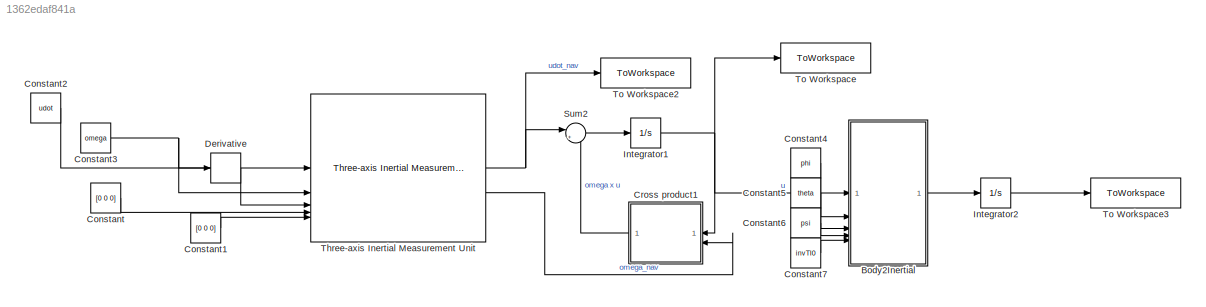
MODEL slx_1362edaf841a
KIND model
CONFIG AbsTol = auto
CONFIG EnableMultiTasking = off
CONFIG FixedStep = auto
CONFIG MaxStep = auto
CONFIG MinStep = auto
CONFIG RelTol = 1e-3
CONFIG SampleTimeConstraint = Unconstrained
CONFIG SolverName = VariableStepAuto
CONFIG StartTime = 0.0
CONFIG StopTime = 10.0
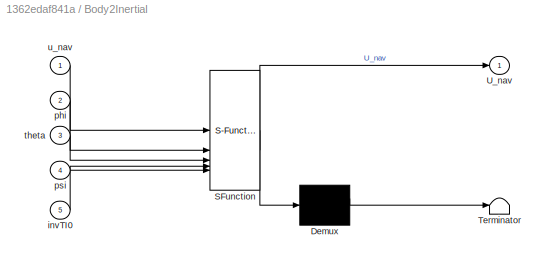
BLOCK [SubSystem] Body2Inertial
  Commented = on
  ErrorFcn = Stateflow.Translate.translate
  LibrarySourceBlock = simulink/User-Defined\nFunctions/MATLAB Function
  PermitHierarchicalResolution = ExplicitOnly
  SFBlockType = MATLAB Function
  TreatAsAtomicUnit = on
BLOCK [Demux] Body2Inertial/ Demux 
  Outputs = 1
BLOCK [S-Function] Body2Inertial/ SFunction 
  EnableBusSupport = on
  FunctionName = sf_sfun
  PortCounts = [5 2]
  SFcnIsStateOwnerBlock = off
  SFunctionDeploymentMode = off
  Tag = Stateflow S-Function 3
BLOCK [Terminator] Body2Inertial/ Terminator 
BLOCK [Outport] Body2Inertial/U_nav
BLOCK [Inport] Body2Inertial/invTI0
  Port = 5
BLOCK [Inport] Body2Inertial/phi
  Port = 2
BLOCK [Inport] Body2Inertial/psi
  Port = 4
BLOCK [Inport] Body2Inertial/theta
  Port = 3
BLOCK [Inport] Body2Inertial/u_nav
BLOCK [Constant] Constant
  Value = [0 0 0]
BLOCK [Constant] Constant1
  Value = [0 0 0]
BLOCK [Constant] Constant2
  Value = udot
BLOCK [Constant] Constant3
  Value = omega
BLOCK [Constant] Constant4
  Commented = on
  Value = phi
BLOCK [Constant] Constant5
  Commented = on
  Value = theta
BLOCK [Constant] Constant6
  Commented = on
  Value = psi
BLOCK [Constant] Constant7
  Commented = on
  Value = invTI0
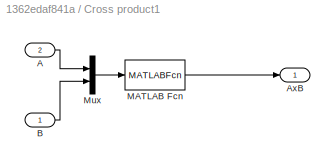
BLOCK [SubSystem] Cross product1
BLOCK [Inport] Cross product1/A
  Port = 2
BLOCK [Outport] Cross product1/AxB
  VectorParamsAs1DForOutWhenUnconnected = off
BLOCK [Inport] Cross product1/B
BLOCK [MATLABFcn] Cross product1/MATLAB Fcn
  MATLABFcn = cross(u(1:3),u(4:6))
BLOCK [Mux] Cross product1/Mux
  DisplayOption = bar
  Inputs = 2
BLOCK [Derivative] Derivative
BLOCK [Integrator] Integrator1
  InitialCondition = u0
BLOCK [Integrator] Integrator2
  Commented = on
  InitialCondition = R_pos0
BLOCK [Sum] Sum2
  Inputs = |+-
BLOCK [Reference] Three-axis Inertial Measurement Unit  REF=aerolibnav/Three-axis Inertial
Measurement Unit
  SourceBlock = aerolibnav/Three-axis Inertial\nMeasurement Unit
  SourceType = Three-axis Inertial Measurement Unit
BLOCK [ToWorkspace] To Workspace
  FixptAsFi = on
  MaxDataPoints = inf
  SampleTime = -1
  VariableName = u_nav
BLOCK [ToWorkspace] To Workspace2
  FixptAsFi = on
  MaxDataPoints = inf
  SampleTime = -1
  VariableName = udot_nav
BLOCK [ToWorkspace] To Workspace3
  Commented = on
  FixptAsFi = on
  MaxDataPoints = inf
  SampleTime = -1
  VariableName = R_nav
LINE Body2Inertial:1 -> Integrator2:1
LINE Constant1:1 -> Three-axis Inertial Measurement Unit:5
LINE Constant2:1 -> Three-axis Inertial Measurement Unit:1
NET Constant3:1 -> Derivative:1, Three-axis Inertial Measurement Unit:2
LINE Constant4:1 -> Body2Inertial:2
LINE Constant5:1 -> Body2Inertial:3
LINE Constant6:1 -> Body2Inertial:4
LINE Constant7:1 -> Body2Inertial:5
LINE Constant:1 -> Three-axis Inertial Measurement Unit:4
LINE Cross product1/A:1 -> Cross product1/Mux:1
LINE Cross product1/B:1 -> Cross product1/Mux:2
LINE Cross product1/MATLAB Fcn:1 -> Cross product1/AxB:1
LINE Cross product1/Mux:1 -> Cross product1/MATLAB Fcn:1
LINE Cross product1:1 -> Sum2:2
LINE Derivative:1 -> Three-axis Inertial Measurement Unit:3
NET Integrator1:1 -> Body2Inertial:1, Cross product1:1, To Workspace:1
LINE Integrator2:1 -> To Workspace3:1
LINE Sum2:1 -> Integrator1:1
NET Three-axis Inertial Measurement Unit:1 -> Sum2:1, To Workspace2:1
LINE Three-axis Inertial Measurement Unit:2 -> Cross product1:2
note: NET lines group one-source signal fan-out (src -> all destinations, sorted); 1:1 wires keep LINE
CHART Body2Inertial states=1 transitions=1
  STATE_LABEL 'eML_blk_kernel()'
  STATE_LABEL 'SCRIPT:\nfunction U_nav  = fcn(u_nav, phi, theta, psi, invTI0)\n\nR01 = [\n    1, 0, 0;\n    0, cos(phi), sin(phi);\n    0, -sin(phi), cos(phi)\n    ];\nR02 = [\n    cos(theta), 0, -sin(theta);\n    0, 1, 0;\n    sin(theta), 0, cos(theta)\n];\nR03 = [\n    cos(psi), sin(psi), 0;\n    -sin(psi), cos(psi), 0;\n    0, 0, 1\n];\nT0 = R01*R02*R03;\ninvT0 = transpose(T0);\n\nU_nav = invTI0*invT0*u_nav;'
CHART  states=0 transitions=0
